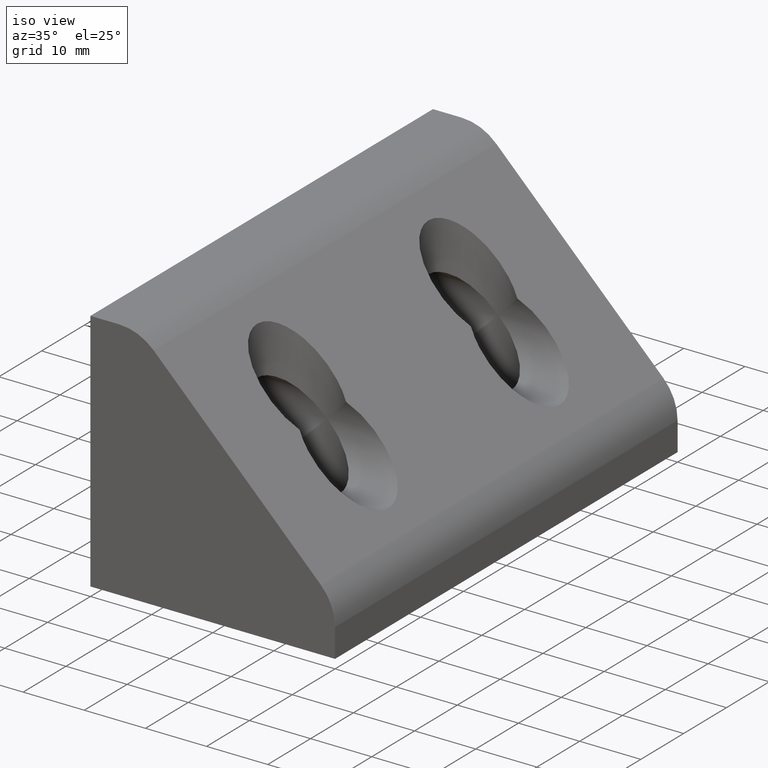
[diagram: clean part render]
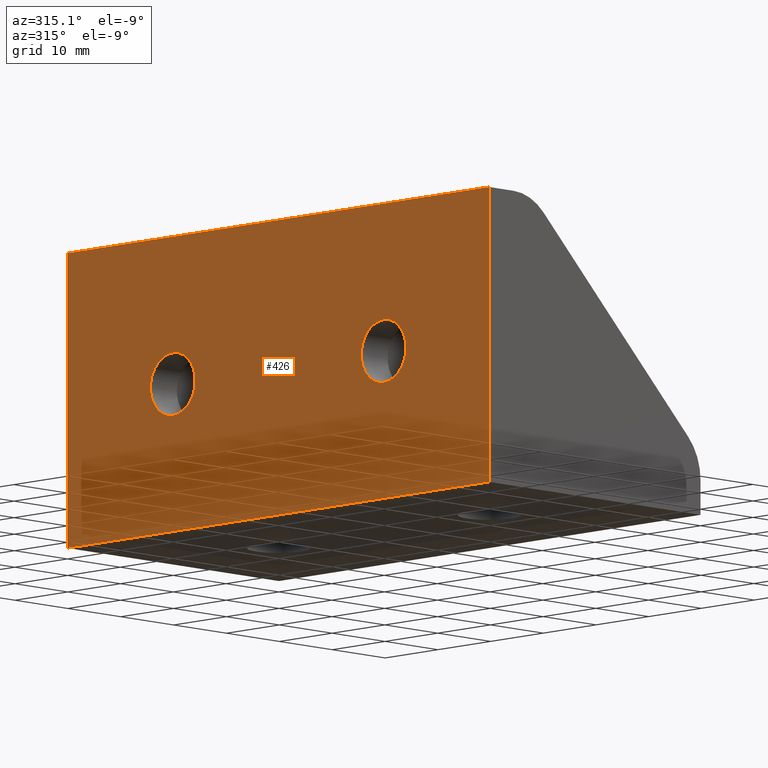
[diagram: tour spotlight — one face highlighted and labeled with its STEP entity id]
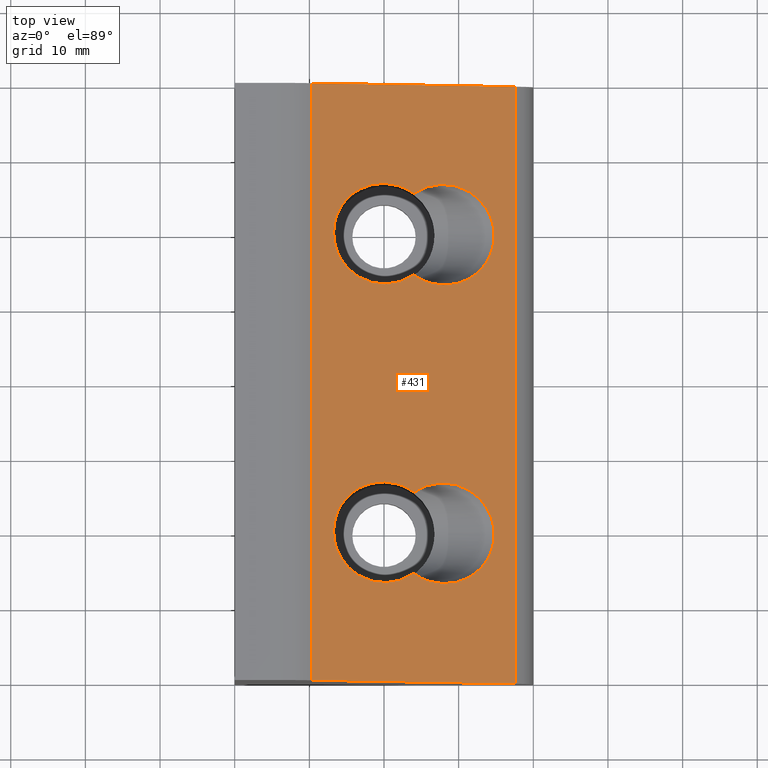
[diagram: tour spotlight — one face highlighted and labeled with its STEP entity id]
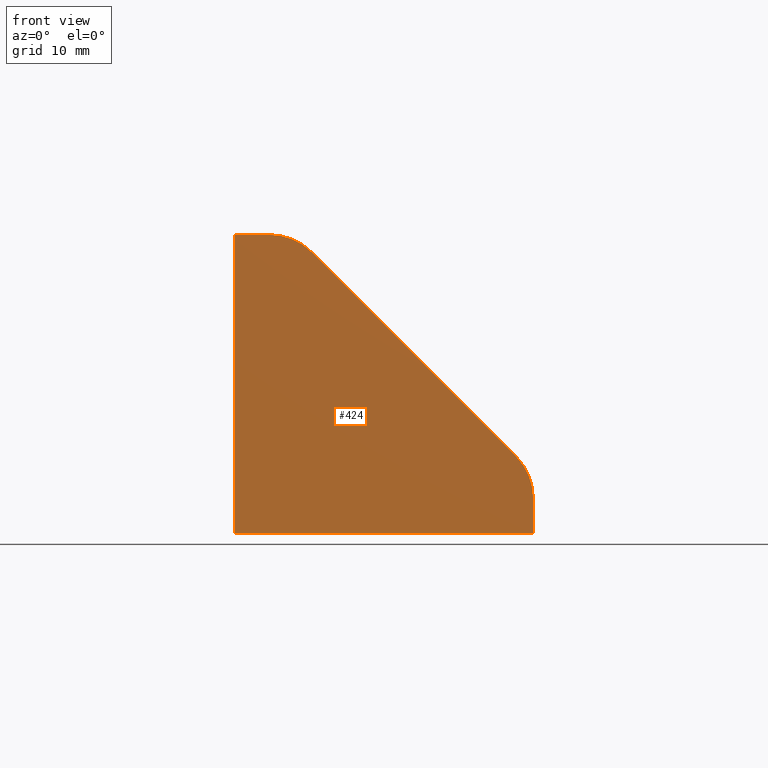
[diagram: tour spotlight — one face highlighted and labeled with its STEP entity id]
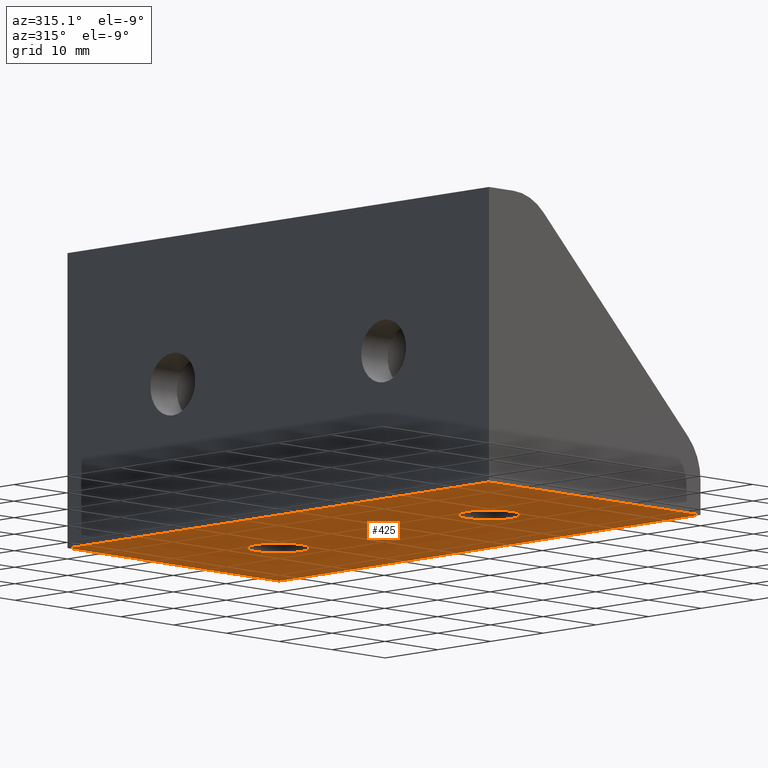
[diagram: tour spotlight — one face highlighted and labeled with its STEP entity id]
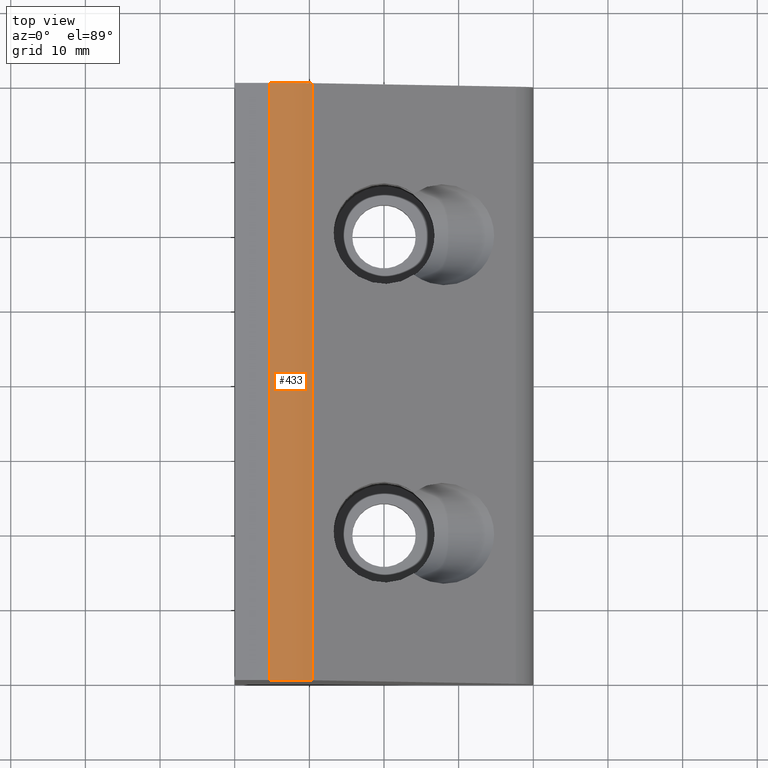
[diagram: tour spotlight — one face highlighted and labeled with its STEP entity id]
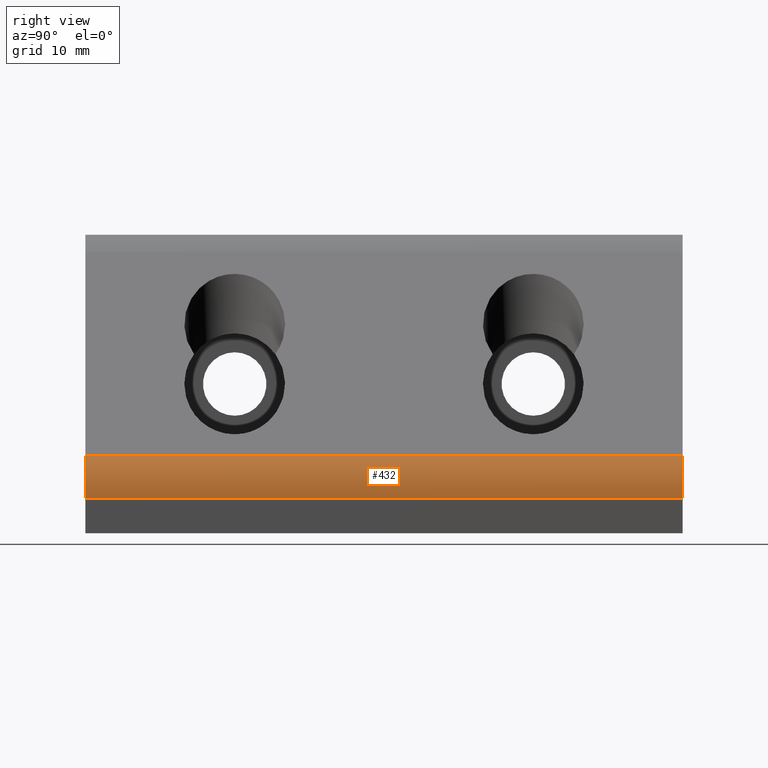
[diagram: tour spotlight — one face highlighted and labeled with its STEP entity id]
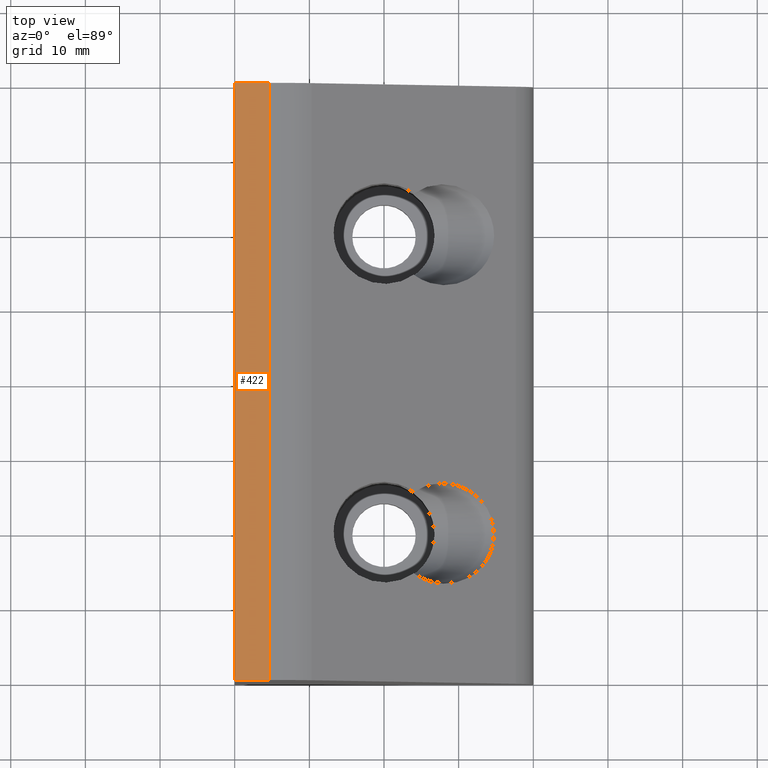
[diagram: tour spotlight — one face highlighted and labeled with its STEP entity id]
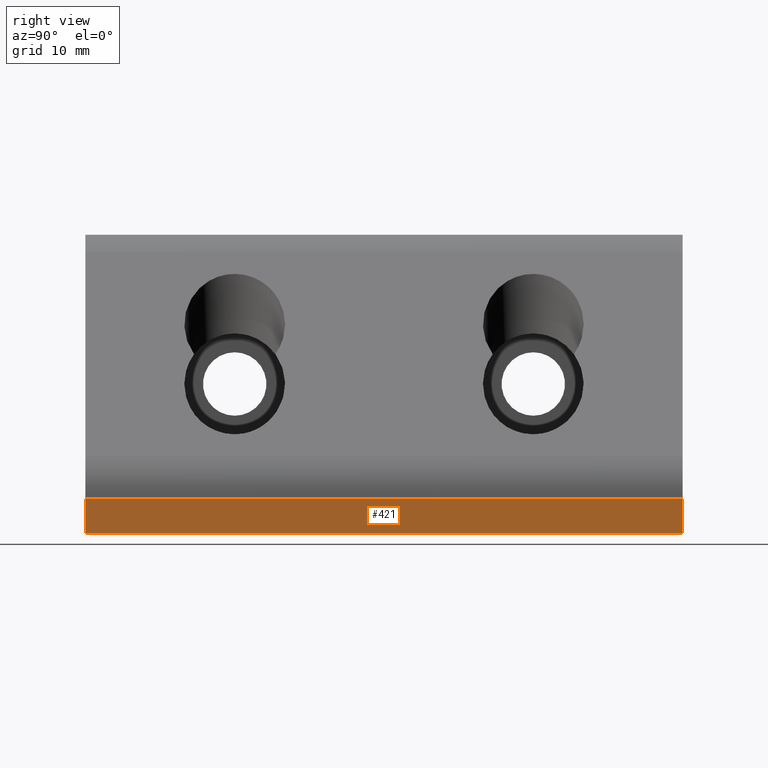
[diagram: tour spotlight — one face highlighted and labeled with its STEP entity id]
A machine part: a face-by-face anatomy tour. The part has 25 B-rep faces; the first image is the clean iso view, then the 8 largest visible faces are spotlighted one at a time (largest first), each with its STEP entity span.

Face 1 — auxiliary view, entity #426. In plain terms, the highlighted planar face has unit normal (1, 0, 0).
Definition (entity closure, byte-faithful):
#17=FACE_BOUND('',#81,.T.);
#18=FACE_BOUND('',#82,.T.);
#30=PLANE('',#508);
#53=FACE_OUTER_BOUND('',#80,.T.);
#80=EDGE_LOOP('',(#365,#366,#367,#368));
#81=EDGE_LOOP('',(#369));
#82=EDGE_LOOP('',(#370));
#102=CIRCLE('',#474,4.25);
#104=CIRCLE('',#477,4.25000000000001);
#127=LINE('',#753,#152);
#130=LINE('',#762,#155);
#132=LINE('',#769,#157);
#134=LINE('',#773,#159);
#152=VECTOR('',#621,80.);
#155=VECTOR('',#630,40.);
#157=VECTOR('',#636,40.);
#159=VECTOR('',#642,80.);
#192=VERTEX_POINT('',#695);
#194=VERTEX_POINT('',#701);
#208=VERTEX_POINT('',#746);
#211=VERTEX_POINT('',#751);
#214=VERTEX_POINT('',#760);
#217=VERTEX_POINT('',#768);
#234=EDGE_CURVE('',#192,#192,#102,.T.);
#237=EDGE_CURVE('',#194,#194,#104,.T.);
#263=EDGE_CURVE('',#211,#208,#127,.T.);
#268=EDGE_CURVE('',#214,#211,#130,.T.);
#271=EDGE_CURVE('',#217,#208,#132,.T.);
#274=EDGE_CURVE('',#214,#217,#134,.T.);
#365=ORIENTED_EDGE('',*,*,#271,.T.);
#366=ORIENTED_EDGE('',*,*,#263,.F.);
#367=ORIENTED_EDGE('',*,*,#268,.F.);
#368=ORIENTED_EDGE('',*,*,#274,.T.);
#369=ORIENTED_EDGE('',*,*,#237,.T.);
#370=ORIENTED_EDGE('',*,*,#234,.T.);
#426=ADVANCED_FACE('',(#53,#17,#18),#30,.F.);
#474=AXIS2_PLACEMENT_3D('',#696,#556,#557);
#477=AXIS2_PLACEMENT_3D('',#702,#563,#564);
#508=AXIS2_PLACEMENT_3D('',#774,#643,#644);
#556=DIRECTION('center_axis',(1.,0.,0.));
#557=DIRECTION('ref_axis',(0.,1.,0.));
#563=DIRECTION('center_axis',(1.,0.,0.));
#564=DIRECTION('ref_axis',(0.,1.,0.));
#621=DIRECTION('',(0.,-1.,0.));
#630=DIRECTION('',(0.,0.,1.));
#636=DIRECTION('',(0.,0.,1.));
#642=DIRECTION('',(0.,-1.,0.));
#643=DIRECTION('center_axis',(1.,0.,0.));
#644=DIRECTION('ref_axis',(0.,0.,-1.));
#695=CARTESIAN_POINT('',(-2.4492940008874E-15,-20.,15.75));
#696=CARTESIAN_POINT('Origin',(-2.449294E-15,-20.,20.));
#701=CARTESIAN_POINT('',(-1.10341999968635E-15,20.,15.75));
#702=CARTESIAN_POINT('Origin',(-1.10342E-15,20.,20.));
#746=CARTESIAN_POINT('',(-4.898587E-15,-40.,40.));
#751=CARTESIAN_POINT('',(4.898587E-15,40.,40.));
#753=CARTESIAN_POINT('',(4.898587E-15,40.,40.));
#760=CARTESIAN_POINT('',(4.898587E-15,40.,-2.449294E-15));
#762=CARTESIAN_POINT('',(4.898587E-15,40.,-2.449294E-15));
#768=CARTESIAN_POINT('',(-4.898587E-15,-40.,2.449294E-15));
#769=CARTESIAN_POINT('',(-4.898587E-15,-40.,2.449294E-15));
#773=CARTESIAN_POINT('',(4.898587E-15,40.,-2.449294E-15));
#774=CARTESIAN_POINT('Origin',(-5.388446E-15,-44.,-2.));

Face 2 — top view, entity #431. In plain terms, the highlighted planar face has unit normal (0.7071, -0, 0.7071).
Definition (entity closure, byte-faithful):
#23=FACE_BOUND('',#92,.T.);
#24=FACE_BOUND('',#93,.T.);
#35=PLANE('',#513);
#58=FACE_OUTER_BOUND('',#91,.T.);
#91=EDGE_LOOP('',(#379,#380,#381,#382));
#92=EDGE_LOOP('',(#383,#384));
#93=EDGE_LOOP('',(#385,#386));
#128=LINE('',#758,#153);
#131=LINE('',#766,#156);
#135=LINE('',#780,#160);
#136=LINE('',#781,#161);
#153=VECTOR('',#626,38.6274169979695);
#156=VECTOR('',#633,38.6274169979695);
#160=VECTOR('',#655,80.);
#161=VECTOR('',#656,80.);
#172=ELLIPSE('',#488,9.54594154603601,6.75000000002159);
#175=ELLIPSE('',#492,9.54594154601712,6.7499999999983);
#178=ELLIPSE('',#496,9.54594154602177,6.75000000000364);
#179=ELLIPSE('',#498,9.54594154602785,6.75000000001158);
#200=VERTEX_POINT('',#721);
#201=VERTEX_POINT('',#722);
#202=VERTEX_POINT('',#727);
#203=VERTEX_POINT('',#728);
#212=VERTEX_POINT('',#755);
#213=VERTEX_POINT('',#757);
#215=VERTEX_POINT('',#764);
#216=VERTEX_POINT('',#765);
#248=EDGE_CURVE('',#200,#201,#172,.T.);
#251=EDGE_CURVE('',#202,#203,#175,.T.);
#254=EDGE_CURVE('',#203,#202,#178,.T.);
#255=EDGE_CURVE('',#201,#200,#179,.T.);
#265=EDGE_CURVE('',#212,#213,#128,.T.);
#269=EDGE_CURVE('',#215,#216,#131,.T.);
#275=EDGE_CURVE('',#212,#215,#135,.T.);
#276=EDGE_CURVE('',#216,#213,#136,.T.);
#379=ORIENTED_EDGE('',*,*,#265,.F.);
#380=ORIENTED_EDGE('',*,*,#275,.T.);
#381=ORIENTED_EDGE('',*,*,#269,.T.);
#382=ORIENTED_EDGE('',*,*,#276,.T.);
#383=ORIENTED_EDGE('',*,*,#254,.T.);
#384=ORIENTED_EDGE('',*,*,#251,.T.);
#385=ORIENTED_EDGE('',*,*,#255,.T.);
#386=ORIENTED_EDGE('',*,*,#248,.T.);
#431=ADVANCED_FACE('',(#58,#23,#24),#35,.T.);
#488=AXIS2_PLACEMENT_3D('',#723,#588,#589);
#492=AXIS2_PLACEMENT_3D('',#729,#596,#597);
#496=AXIS2_PLACEMENT_3D('',#733,#604,#605);
#498=AXIS2_PLACEMENT_3D('',#735,#608,#609);
#513=AXIS2_PLACEMENT_3D('',#779,#653,#654);
#588=DIRECTION('center_axis',(-0.707106781186548,0.,-0.707106781186548));
#589=DIRECTION('ref_axis',(0.707106781186547,1.47029705950025E-12,-0.707106781186547));
#596=DIRECTION('center_axis',(-0.707106781186549,8.04270484236121E-16,-0.707106781186546));
#597=DIRECTION('ref_axis',(0.707106781186546,-6.86880464522745E-14,-0.707106781186549));
#604=DIRECTION('center_axis',(-0.707106781186552,-3.61921717906261E-14,
-0.707106781186543));
#605=DIRECTION('ref_axis',(0.707106781186543,3.65393236660301E-13,-0.707106781186552));
#608=DIRECTION('center_axis',(-0.707106781186552,-2.73451964640282E-14,
-0.707106781186543));
#609=DIRECTION('ref_axis',(0.707106781186543,8.41442404316365E-13,-0.707106781186552));
#626=DIRECTION('',(0.707106781186547,-1.14967358514655E-16,-0.707106781186548));
#633=DIRECTION('',(0.707106781186547,-2.29934717029309E-16,-0.707106781186548));
#653=DIRECTION('center_axis',(0.707106781186548,-4.32978E-17,0.707106781186547));
#654=DIRECTION('ref_axis',(0.707106781186547,0.,-0.707106781186548));
#655=DIRECTION('',(0.,-1.,0.));
#656=DIRECTION('',(0.,1.,0.));
#721=CARTESIAN_POINT('',(24.,14.5628592072671,24.));
#722=CARTESIAN_POINT('',(24.,25.4371407927329,24.));
#723=CARTESIAN_POINT('Origin',(19.9999999999927,19.9999999999784,28.0000000000073));
#727=CARTESIAN_POINT('',(24.,-25.4371407927329,24.));
#728=CARTESIAN_POINT('',(24.,-14.5628592072671,24.));
#729=CARTESIAN_POINT('Origin',(20.0000000000004,-19.9999999999983,27.9999999999997));
#733=CARTESIAN_POINT('Origin',(28.0000000000017,-19.9999999999964,19.999999999998));
#735=CARTESIAN_POINT('Origin',(28.000000000004,20.0000000000116,19.9999999999957));
#755=CARTESIAN_POINT('',(10.3431457505076,40.,37.6568542494924));
#757=CARTESIAN_POINT('',(37.6568542494924,40.,10.3431457505076));
#758=CARTESIAN_POINT('',(10.3431457505077,40.,37.6568542494924));
#764=CARTESIAN_POINT('',(10.3431457505076,-40.,37.6568542494924));
#765=CARTESIAN_POINT('',(37.6568542494924,-40.,10.3431457505076));
#766=CARTESIAN_POINT('',(10.3431457505076,-40.,37.6568542494924));
#779=CARTESIAN_POINT('Origin',(8.9774603255584,-44.,39.0225396744416));
#780=CARTESIAN_POINT('',(10.3431457505076,40.,37.6568542494924));
#781=CARTESIAN_POINT('',(37.6568542494924,-40.,10.3431457505076));

Face 3 — front view, entity #424. In plain terms, the highlighted planar face has unit normal (0, 1, 0).
Definition (entity closure, byte-faithful):
#28=PLANE('',#504);
#51=FACE_OUTER_BOUND('',#76,.T.);
#76=EDGE_LOOP('',(#352,#353,#354,#355,#356,#357,#358));
#110=CIRCLE('',#505,8.);
#111=CIRCLE('',#506,8.);
#122=LINE('',#743,#147);
#124=LINE('',#748,#149);
#131=LINE('',#766,#156);
#132=LINE('',#769,#157);
#133=LINE('',#770,#158);
#147=VECTOR('',#614,4.68629150101524);
#149=VECTOR('',#618,4.68629150101524);
#156=VECTOR('',#633,38.6274169979695);
#157=VECTOR('',#636,40.);
#158=VECTOR('',#637,40.);
#206=VERTEX_POINT('',#740);
#207=VERTEX_POINT('',#742);
#208=VERTEX_POINT('',#746);
#209=VERTEX_POINT('',#747);
#215=VERTEX_POINT('',#764);
#216=VERTEX_POINT('',#765);
#217=VERTEX_POINT('',#768);
#258=EDGE_CURVE('',#206,#207,#122,.T.);
#260=EDGE_CURVE('',#208,#209,#124,.T.);
#269=EDGE_CURVE('',#215,#216,#131,.T.);
#270=EDGE_CURVE('',#215,#209,#110,.T.);
#271=EDGE_CURVE('',#217,#208,#132,.T.);
#272=EDGE_CURVE('',#207,#217,#133,.T.);
#273=EDGE_CURVE('',#206,#216,#111,.T.);
#352=ORIENTED_EDGE('',*,*,#269,.F.);
#353=ORIENTED_EDGE('',*,*,#270,.T.);
#354=ORIENTED_EDGE('',*,*,#260,.F.);
#355=ORIENTED_EDGE('',*,*,#271,.F.);
#356=ORIENTED_EDGE('',*,*,#272,.F.);
#357=ORIENTED_EDGE('',*,*,#258,.F.);
#358=ORIENTED_EDGE('',*,*,#273,.T.);
#424=ADVANCED_FACE('',(#51),#28,.F.);
#504=AXIS2_PLACEMENT_3D('',#763,#631,#632);
#505=AXIS2_PLACEMENT_3D('',#767,#634,#635);
#506=AXIS2_PLACEMENT_3D('',#771,#638,#639);
#614=DIRECTION('',(0.,0.,-1.));
#618=DIRECTION('',(1.,0.,0.));
#631=DIRECTION('center_axis',(0.,1.,0.));
#632=DIRECTION('ref_axis',(0.,0.,1.));
#633=DIRECTION('',(0.707106781186547,-2.29934717029309E-16,-0.707106781186548));
#634=DIRECTION('center_axis',(0.,-1.,0.));
#635=DIRECTION('ref_axis',(-1.,0.,0.));
#636=DIRECTION('',(0.,0.,1.));
#637=DIRECTION('',(-1.,0.,0.));
#638=DIRECTION('center_axis',(0.,-1.,0.));
#639=DIRECTION('ref_axis',(-1.,0.,0.));
#740=CARTESIAN_POINT('',(40.,-40.,4.68629150101524));
#742=CARTESIAN_POINT('',(40.,-40.,2.449294E-15));
#743=CARTESIAN_POINT('',(40.,-40.,4.68629150101524));
#746=CARTESIAN_POINT('',(-4.898587E-15,-40.,40.));
#747=CARTESIAN_POINT('',(4.68629150101524,-40.,40.));
#748=CARTESIAN_POINT('',(-4.898587E-15,-40.,40.));
#763=CARTESIAN_POINT('Origin',(42.,-40.,-2.));
#764=CARTESIAN_POINT('',(10.3431457505076,-40.,37.6568542494924));
#765=CARTESIAN_POINT('',(37.6568542494924,-40.,10.3431457505076));
#766=CARTESIAN_POINT('',(10.3431457505076,-40.,37.6568542494924));
#767=CARTESIAN_POINT('Origin',(4.68629150101524,-40.,32.));
#768=CARTESIAN_POINT('',(-4.898587E-15,-40.,2.449294E-15));
#769=CARTESIAN_POINT('',(-4.898587E-15,-40.,2.449294E-15));
#770=CARTESIAN_POINT('',(40.,-40.,2.449294E-15));
#771=CARTESIAN_POINT('Origin',(32.,-40.,4.68629150101524));

Face 4 — auxiliary view, entity #425. In plain terms, the highlighted planar face has unit normal (0, 0, 1).
Definition (entity closure, byte-faithful):
#15=FACE_BOUND('',#78,.T.);
#16=FACE_BOUND('',#79,.T.);
#29=PLANE('',#507);
#52=FACE_OUTER_BOUND('',#77,.T.);
#77=EDGE_LOOP('',(#359,#360,#361,#362));
#78=EDGE_LOOP('',(#363));
#79=EDGE_LOOP('',(#364));
#97=CIRCLE('',#463,4.25000000000001);
#100=CIRCLE('',#471,4.25);
#123=LINE('',#744,#148);
#129=LINE('',#761,#154);
#133=LINE('',#770,#158);
#134=LINE('',#773,#159);
#148=VECTOR('',#615,80.);
#154=VECTOR('',#629,40.);
#158=VECTOR('',#637,40.);
#159=VECTOR('',#642,80.);
#184=VERTEX_POINT('',#673);
#190=VERTEX_POINT('',#689);
#205=VERTEX_POINT('',#738);
#207=VERTEX_POINT('',#742);
#214=VERTEX_POINT('',#760);
#217=VERTEX_POINT('',#768);
#223=EDGE_CURVE('',#184,#184,#97,.T.);
#231=EDGE_CURVE('',#190,#190,#100,.T.);
#259=EDGE_CURVE('',#205,#207,#123,.T.);
#267=EDGE_CURVE('',#205,#214,#129,.T.);
#272=EDGE_CURVE('',#207,#217,#133,.T.);
#274=EDGE_CURVE('',#214,#217,#134,.T.);
#359=ORIENTED_EDGE('',*,*,#272,.T.);
#360=ORIENTED_EDGE('',*,*,#274,.F.);
#361=ORIENTED_EDGE('',*,*,#267,.F.);
#362=ORIENTED_EDGE('',*,*,#259,.T.);
#363=ORIENTED_EDGE('',*,*,#231,.T.);
#364=ORIENTED_EDGE('',*,*,#223,.T.);
#425=ADVANCED_FACE('',(#52,#15,#16),#29,.F.);
#463=AXIS2_PLACEMENT_3D('',#674,#531,#532);
#471=AXIS2_PLACEMENT_3D('',#690,#549,#550);
#507=AXIS2_PLACEMENT_3D('',#772,#640,#641);
#531=DIRECTION('center_axis',(0.,0.,1.));
#532=DIRECTION('ref_axis',(0.,1.,0.));
#549=DIRECTION('center_axis',(0.,0.,1.));
#550=DIRECTION('ref_axis',(0.,1.,0.));
#615=DIRECTION('',(0.,-1.,0.));
#629=DIRECTION('',(-1.,0.,0.));
#637=DIRECTION('',(-1.,0.,0.));
#640=DIRECTION('center_axis',(0.,0.,1.));
#641=DIRECTION('ref_axis',(1.,0.,0.));
#642=DIRECTION('',(0.,-1.,0.));
#673=CARTESIAN_POINT('',(24.25,20.,-1.22464699940973E-15));
#674=CARTESIAN_POINT('Origin',(20.,20.,-1.224647E-15));
#689=CARTESIAN_POINT('',(24.25,-20.,1.22464699940973E-15));
#690=CARTESIAN_POINT('Origin',(20.,-20.,1.224647E-15));
#738=CARTESIAN_POINT('',(40.,40.,-2.449294E-15));
#742=CARTESIAN_POINT('',(40.,-40.,2.449294E-15));
#744=CARTESIAN_POINT('',(40.,40.,-2.449294E-15));
#760=CARTESIAN_POINT('',(4.898587E-15,40.,-2.449294E-15));
#761=CARTESIAN_POINT('',(40.,40.,-2.449294E-15));
#768=CARTESIAN_POINT('',(-4.898587E-15,-40.,2.449294E-15));
#770=CARTESIAN_POINT('',(40.,-40.,2.449294E-15));
#772=CARTESIAN_POINT('Origin',(42.,-44.,2.694223E-15));
#773=CARTESIAN_POINT('',(4.898587E-15,40.,-2.449294E-15));

Face 5 — top view, entity #433. In plain terms, the highlighted cylindrical surface (partial cylindrical patch) has radius 8 mm, axis along (0, -1, 0).
Definition (entity closure, byte-faithful):
#60=FACE_OUTER_BOUND('',#95,.T.);
#95=EDGE_LOOP('',(#391,#392,#393,#394));
#108=CIRCLE('',#502,8.);
#110=CIRCLE('',#505,8.);
#125=LINE('',#750,#150);
#135=LINE('',#780,#160);
#150=VECTOR('',#619,80.);
#160=VECTOR('',#655,80.);
#209=VERTEX_POINT('',#747);
#210=VERTEX_POINT('',#749);
#212=VERTEX_POINT('',#755);
#215=VERTEX_POINT('',#764);
#261=EDGE_CURVE('',#209,#210,#125,.T.);
#264=EDGE_CURVE('',#210,#212,#108,.T.);
#270=EDGE_CURVE('',#215,#209,#110,.T.);
#275=EDGE_CURVE('',#212,#215,#135,.T.);
#391=ORIENTED_EDGE('',*,*,#270,.F.);
#392=ORIENTED_EDGE('',*,*,#275,.F.);
#393=ORIENTED_EDGE('',*,*,#264,.F.);
#394=ORIENTED_EDGE('',*,*,#261,.F.);
#408=CYLINDRICAL_SURFACE('',#515,8.);
#433=ADVANCED_FACE('',(#60),#408,.T.);
#502=AXIS2_PLACEMENT_3D('',#756,#624,#625);
#505=AXIS2_PLACEMENT_3D('',#767,#634,#635);
#515=AXIS2_PLACEMENT_3D('',#783,#659,#660);
#619=DIRECTION('',(0.,1.,0.));
#624=DIRECTION('center_axis',(0.,1.,0.));
#625=DIRECTION('ref_axis',(-1.,0.,0.));
#634=DIRECTION('center_axis',(0.,-1.,0.));
#635=DIRECTION('ref_axis',(-1.,0.,0.));
#655=DIRECTION('',(0.,-1.,0.));
#659=DIRECTION('center_axis',(0.,-1.,0.));
#660=DIRECTION('ref_axis',(1.,0.,0.));
#747=CARTESIAN_POINT('',(4.68629150101524,-40.,40.));
#749=CARTESIAN_POINT('',(4.68629150101525,40.,40.));
#750=CARTESIAN_POINT('',(4.68629150101524,-40.,40.));
#755=CARTESIAN_POINT('',(10.3431457505076,40.,37.6568542494924));
#756=CARTESIAN_POINT('Origin',(4.68629150101525,40.,32.));
#764=CARTESIAN_POINT('',(10.3431457505076,-40.,37.6568542494924));
#767=CARTESIAN_POINT('Origin',(4.68629150101524,-40.,32.));
#780=CARTESIAN_POINT('',(10.3431457505076,40.,37.6568542494924));
#783=CARTESIAN_POINT('Origin',(4.68629150101525,40.00000001,32.));

Face 6 — right view, entity #432. In plain terms, the highlighted cylindrical surface (partial cylindrical patch) has radius 8 mm, axis along (0, -1, 0).
Definition (entity closure, byte-faithful):
#59=FACE_OUTER_BOUND('',#94,.T.);
#94=EDGE_LOOP('',(#387,#388,#389,#390));
#109=CIRCLE('',#503,8.);
#111=CIRCLE('',#506,8.);
#121=LINE('',#741,#146);
#136=LINE('',#781,#161);
#146=VECTOR('',#613,80.);
#161=VECTOR('',#656,80.);
#204=VERTEX_POINT('',#737);
#206=VERTEX_POINT('',#740);
#213=VERTEX_POINT('',#757);
#216=VERTEX_POINT('',#765);
#257=EDGE_CURVE('',#204,#206,#121,.T.);
#266=EDGE_CURVE('',#213,#204,#109,.T.);
#273=EDGE_CURVE('',#206,#216,#111,.T.);
#276=EDGE_CURVE('',#216,#213,#136,.T.);
#387=ORIENTED_EDGE('',*,*,#273,.F.);
#388=ORIENTED_EDGE('',*,*,#257,.F.);
#389=ORIENTED_EDGE('',*,*,#266,.F.);
#390=ORIENTED_EDGE('',*,*,#276,.F.);
#407=CYLINDRICAL_SURFACE('',#514,8.);
#432=ADVANCED_FACE('',(#59),#407,.T.);
#503=AXIS2_PLACEMENT_3D('',#759,#627,#628);
#506=AXIS2_PLACEMENT_3D('',#771,#638,#639);
#514=AXIS2_PLACEMENT_3D('',#782,#657,#658);
#613=DIRECTION('',(0.,-1.,0.));
#627=DIRECTION('center_axis',(0.,1.,0.));
#628=DIRECTION('ref_axis',(-1.,0.,0.));
#638=DIRECTION('center_axis',(0.,-1.,0.));
#639=DIRECTION('ref_axis',(-1.,0.,0.));
#656=DIRECTION('',(0.,1.,0.));
#657=DIRECTION('center_axis',(0.,-1.,0.));
#658=DIRECTION('ref_axis',(0.923879532511286,0.,0.382683432365092));
#737=CARTESIAN_POINT('',(40.,40.,4.68629150101524));
#740=CARTESIAN_POINT('',(40.,-40.,4.68629150101524));
#741=CARTESIAN_POINT('',(40.,40.,4.68629150101524));
#757=CARTESIAN_POINT('',(37.6568542494924,40.,10.3431457505076));
#759=CARTESIAN_POINT('Origin',(32.,40.,4.68629150101524));
#765=CARTESIAN_POINT('',(37.6568542494924,-40.,10.3431457505076));
#771=CARTESIAN_POINT('Origin',(32.,-40.,4.68629150101524));
#781=CARTESIAN_POINT('',(37.6568542494924,-40.,10.3431457505076));
#782=CARTESIAN_POINT('Origin',(32.,40.00000001,4.68629150101524));

Face 7 — top view, entity #422. In plain terms, the highlighted planar face has unit normal (0, 0, -1).
Definition (entity closure, byte-faithful):
#26=PLANE('',#500);
#49=FACE_OUTER_BOUND('',#74,.T.);
#74=EDGE_LOOP('',(#341,#342,#343,#344));
#124=LINE('',#748,#149);
#125=LINE('',#750,#150);
#126=LINE('',#752,#151);
#127=LINE('',#753,#152);
#149=VECTOR('',#618,4.68629150101524);
#150=VECTOR('',#619,80.);
#151=VECTOR('',#620,4.68629150101524);
#152=VECTOR('',#621,80.);
#208=VERTEX_POINT('',#746);
#209=VERTEX_POINT('',#747);
#210=VERTEX_POINT('',#749);
#211=VERTEX_POINT('',#751);
#260=EDGE_CURVE('',#208,#209,#124,.T.);
#261=EDGE_CURVE('',#209,#210,#125,.T.);
#262=EDGE_CURVE('',#211,#210,#126,.T.);
#263=EDGE_CURVE('',#211,#208,#127,.T.);
#341=ORIENTED_EDGE('',*,*,#260,.T.);
#342=ORIENTED_EDGE('',*,*,#261,.T.);
#343=ORIENTED_EDGE('',*,*,#262,.F.);
#344=ORIENTED_EDGE('',*,*,#263,.T.);
#422=ADVANCED_FACE('',(#49),#26,.F.);
#500=AXIS2_PLACEMENT_3D('',#745,#616,#617);
#616=DIRECTION('center_axis',(0.,0.,-1.));
#617=DIRECTION('ref_axis',(-1.,0.,0.));
#618=DIRECTION('',(1.,0.,0.));
#619=DIRECTION('',(0.,1.,0.));
#620=DIRECTION('',(1.,0.,0.));
#621=DIRECTION('',(0.,-1.,0.));
#745=CARTESIAN_POINT('Origin',(4.92060607606601,44.,40.));
#746=CARTESIAN_POINT('',(-4.898587E-15,-40.,40.));
#747=CARTESIAN_POINT('',(4.68629150101524,-40.,40.));
#748=CARTESIAN_POINT('',(-4.898587E-15,-40.,40.));
#749=CARTESIAN_POINT('',(4.68629150101525,40.,40.));
#750=CARTESIAN_POINT('',(4.68629150101524,-40.,40.));
#751=CARTESIAN_POINT('',(4.898587E-15,40.,40.));
#752=CARTESIAN_POINT('',(4.898587E-15,40.,40.));
#753=CARTESIAN_POINT('',(4.898587E-15,40.,40.));

Face 8 — right view, entity #421. In plain terms, the highlighted planar face has unit normal (-1, 0, 0).
Definition (entity closure, byte-faithful):
#25=PLANE('',#499);
#48=FACE_OUTER_BOUND('',#73,.T.);
#73=EDGE_LOOP('',(#337,#338,#339,#340));
#120=LINE('',#739,#145);
#121=LINE('',#741,#146);
#122=LINE('',#743,#147);
#123=LINE('',#744,#148);
#145=VECTOR('',#612,4.68629150101524);
#146=VECTOR('',#613,80.);
#147=VECTOR('',#614,4.68629150101524);
#148=VECTOR('',#615,80.);
#204=VERTEX_POINT('',#737);
#205=VERTEX_POINT('',#738);
#206=VERTEX_POINT('',#740);
#207=VERTEX_POINT('',#742);
#256=EDGE_CURVE('',#204,#205,#120,.T.);
#257=EDGE_CURVE('',#204,#206,#121,.T.);
#258=EDGE_CURVE('',#206,#207,#122,.T.);
#259=EDGE_CURVE('',#205,#207,#123,.T.);
#337=ORIENTED_EDGE('',*,*,#256,.F.);
#338=ORIENTED_EDGE('',*,*,#257,.T.);
#339=ORIENTED_EDGE('',*,*,#258,.T.);
#340=ORIENTED_EDGE('',*,*,#259,.F.);
#421=ADVANCED_FACE('',(#48),#25,.F.);
#499=AXIS2_PLACEMENT_3D('',#736,#610,#611);
#610=DIRECTION('center_axis',(-1.,0.,0.));
#611=DIRECTION('ref_axis',(0.,0.,1.));
#612=DIRECTION('',(0.,0.,-1.));
#613=DIRECTION('',(0.,-1.,0.));
#614=DIRECTION('',(0.,0.,-1.));
#615=DIRECTION('',(0.,-1.,0.));
#736=CARTESIAN_POINT('Origin',(40.,44.,-0.234314575050763));
#737=CARTESIAN_POINT('',(40.,40.,4.68629150101524));
#738=CARTESIAN_POINT('',(40.,40.,-2.449294E-15));
#739=CARTESIAN_POINT('',(40.,40.,4.68629150101524));
#740=CARTESIAN_POINT('',(40.,-40.,4.68629150101524));
#741=CARTESIAN_POINT('',(40.,40.,4.68629150101524));
#742=CARTESIAN_POINT('',(40.,-40.,2.449294E-15));
#743=CARTESIAN_POINT('',(40.,-40.,4.68629150101524));
#744=CARTESIAN_POINT('',(40.,40.,-2.449294E-15));